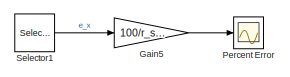
[diagram: root canvas - part 1/3, top right region]
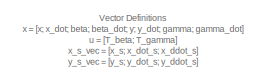
[diagram: root canvas - part 2/3, middle left region]
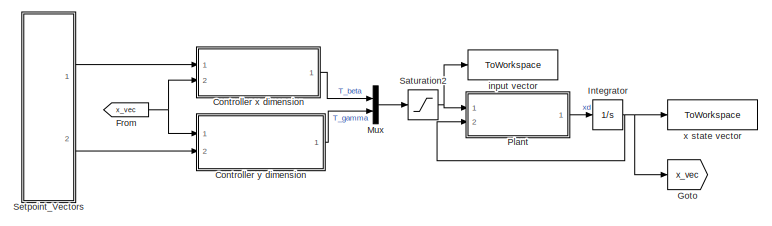
[diagram: root canvas - part 3/3, bottom left region]
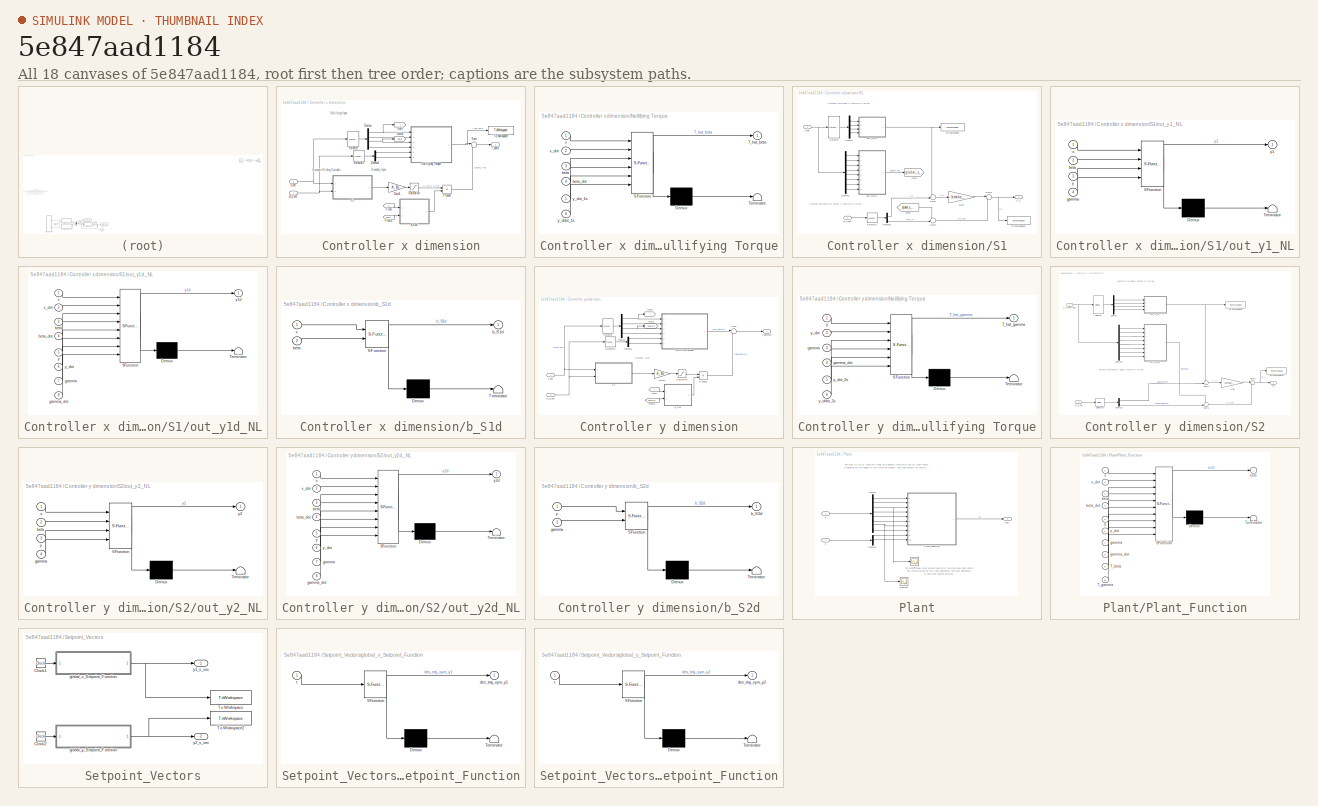
[diagram: thumbnail index - all 18 canvases of the model, root first then tree order]
MODEL slx_5e847aad1184
KIND model
CONFIG AbsTol = auto
CONFIG EnableMultiTasking = off
CONFIG FixedStep = auto
CONFIG MaxStep = auto
CONFIG MinStep = auto
CONFIG RelTol = 1e-9
CONFIG SampleTimeConstraint = Unconstrained
CONFIG SolverName = VariableStepAuto
CONFIG StartTime = 0.0
CONFIG StopTime = t_sim
BLOCK [SubSystem] Controller x dimension
  NameLocation = top
  Ports = [2, 1]
  RequestExecContextInheritance = off
BLOCK [Demux] Controller x dimension/Demux
  Ports = [1, 4]
BLOCK [Demux] Controller x dimension/Demux1
  Outputs = 2
  Ports = [1, 2]
BLOCK [From] Controller x dimension/From
  GotoTag = x
BLOCK [From] Controller x dimension/From1
  GotoTag = beta
BLOCK [Gain] Controller x dimension/Gain1
  Gain = -K_BL
BLOCK [Goto] Controller x dimension/Goto
  GotoTag = x
BLOCK [Goto] Controller x dimension/Goto1
  GotoTag = beta
BLOCK [SubSystem] Controller x dimension/Nullifying Torque
  ErrorFcn = Stateflow.Translate.translate
  PermitHierarchicalResolution = ExplicitOnly
  Ports = [6, 1]
  RequestExecContextInheritance = off
  SFBlockType = MATLAB Function
  TreatAsAtomicUnit = on
BLOCK [Demux] Controller x dimension/Nullifying Torque/ Demux 
  Outputs = 1
  Ports = [1, 1]
BLOCK [S-Function] Controller x dimension/Nullifying Torque/ SFunction 
  EnableBusSupport = on
  FunctionName = sf_sfun
  PortCounts = [6 2]
  Ports = [6, 2]
  SFcnIsStateOwnerBlock = off
  SFunctionDeploymentMode = off
  Tag = Stateflow S-Function 9
BLOCK [Terminator] Controller x dimension/Nullifying Torque/ Terminator 
BLOCK [Outport] Controller x dimension/Nullifying Torque/T_hat_beta
BLOCK [Inport] Controller x dimension/Nullifying Torque/beta
  Port = 3
BLOCK [Inport] Controller x dimension/Nullifying Torque/beta_dot
  Port = 4
BLOCK [Inport] Controller x dimension/Nullifying Torque/x
BLOCK [Inport] Controller x dimension/Nullifying Torque/x_dot
  Port = 2
BLOCK [Inport] Controller x dimension/Nullifying Torque/y_ddot_1s
  Port = 6
BLOCK [Inport] Controller x dimension/Nullifying Torque/y_dot_1s
  Port = 5
BLOCK [Product] Controller x dimension/Product
  Inputs = */
  Ports = [2, 1]
BLOCK [SubSystem] Controller x dimension/S1
  Ports = [2, 1]
  RequestExecContextInheritance = off
BLOCK [Demux] Controller x dimension/S1/Demux
  Ports = [1, 4]
BLOCK [Demux] Controller x dimension/S1/Demux1
  Outputs = 8
  Ports = [1, 8]
BLOCK [Demux] Controller x dimension/S1/Demux2
  Outputs = 2
  Ports = [1, 2]
BLOCK [From] Controller x dimension/S1/From
  GotoTag = global_x_dot
BLOCK [Gain] Controller x dimension/S1/Gain
  Gain = lambda_1_num
BLOCK [Goto] Controller x dimension/S1/Goto
  GotoTag = global_x_dot
BLOCK [Outport] Controller x dimension/S1/S_1
BLOCK [Selector] Controller x dimension/S1/Selector
  IndexOptions = Index vector (dialog)
  Indices = [1 3 5 7]
  InputPortWidth = 8
  OutputSizes = 1
  Ports = [1, 1]
BLOCK [Selector] Controller x dimension/S1/Selector1
  IndexOptions = Index vector (dialog)
  Indices = [1 2]
  InputPortWidth = 3
  OutputSizes = 1
  Ports = [1, 1]
BLOCK [Sum] Controller x dimension/S1/Sum1
  Inputs = -+|
  Ports = [2, 1]
BLOCK [Sum] Controller x dimension/S1/Sum2
  Inputs = -+|
  Ports = [2, 1]
BLOCK [Sum] Controller x dimension/S1/Sum3
  Inputs = |++
  Ports = [2, 1]
BLOCK [ToWorkspace] Controller x dimension/S1/To Workspace
  FixptAsFi = on
  MaxDataPoints = inf
  Ports = [1]
  SampleTime = -1
  VariableName = y1
BLOCK [ToWorkspace] Controller x dimension/S1/To Workspace1
  FixptAsFi = on
  MaxDataPoints = inf
  Ports = [1]
  SampleTime = -1
  VariableName = S1
BLOCK [SubSystem] Controller x dimension/S1/out_y1_NL
  ErrorFcn = Stateflow.Translate.translate
  PermitHierarchicalResolution = ExplicitOnly
  Ports = [4, 1]
  RequestExecContextInheritance = off
  SFBlockType = MATLAB Function
  TreatAsAtomicUnit = on
BLOCK [Demux] Controller x dimension/S1/out_y1_NL/ Demux 
  Outputs = 1
  Ports = [1, 1]
BLOCK [S-Function] Controller x dimension/S1/out_y1_NL/ SFunction 
  EnableBusSupport = on
  FunctionName = sf_sfun
  PortCounts = [4 2]
  Ports = [4, 2]
  SFcnIsStateOwnerBlock = off
  SFunctionDeploymentMode = off
  Tag = Stateflow S-Function 5
BLOCK [Terminator] Controller x dimension/S1/out_y1_NL/ Terminator 
BLOCK [Inport] Controller x dimension/S1/out_y1_NL/beta
  Port = 2
BLOCK [Inport] Controller x dimension/S1/out_y1_NL/gamma
  Port = 4
BLOCK [Inport] Controller x dimension/S1/out_y1_NL/x
BLOCK [Inport] Controller x dimension/S1/out_y1_NL/y
  Port = 3
BLOCK [Outport] Controller x dimension/S1/out_y1_NL/y1
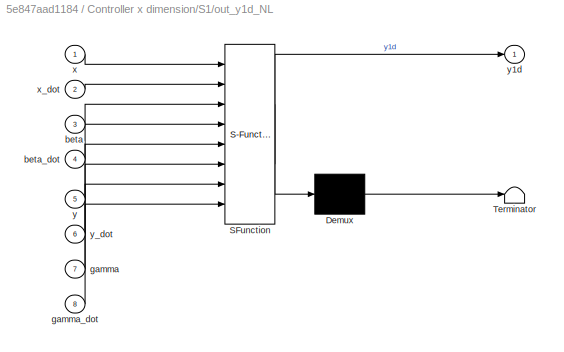
BLOCK [SubSystem] Controller x dimension/S1/out_y1d_NL
  ErrorFcn = Stateflow.Translate.translate
  PermitHierarchicalResolution = ExplicitOnly
  Ports = [8, 1]
  RequestExecContextInheritance = off
  SFBlockType = MATLAB Function
  TreatAsAtomicUnit = on
BLOCK [Demux] Controller x dimension/S1/out_y1d_NL/ Demux 
  Outputs = 1
  Ports = [1, 1]
BLOCK [S-Function] Controller x dimension/S1/out_y1d_NL/ SFunction 
  EnableBusSupport = on
  FunctionName = sf_sfun
  PortCounts = [8 2]
  Ports = [8, 2]
  SFcnIsStateOwnerBlock = off
  SFunctionDeploymentMode = off
  Tag = Stateflow S-Function 11
BLOCK [Terminator] Controller x dimension/S1/out_y1d_NL/ Terminator 
BLOCK [Inport] Controller x dimension/S1/out_y1d_NL/beta
  Port = 3
BLOCK [Inport] Controller x dimension/S1/out_y1d_NL/beta_dot
  Port = 4
BLOCK [Inport] Controller x dimension/S1/out_y1d_NL/gamma
  Port = 7
BLOCK [Inport] Controller x dimension/S1/out_y1d_NL/gamma_dot
  Port = 8
BLOCK [Inport] Controller x dimension/S1/out_y1d_NL/x
BLOCK [Inport] Controller x dimension/S1/out_y1d_NL/x_dot
  Port = 2
BLOCK [Inport] Controller x dimension/S1/out_y1d_NL/y
  Port = 5
BLOCK [Outport] Controller x dimension/S1/out_y1d_NL/y1d
BLOCK [Inport] Controller x dimension/S1/out_y1d_NL/y_dot
  Port = 6
BLOCK [Inport] Controller x dimension/S1/x_vec
BLOCK [Inport] Controller x dimension/S1/y1_s_vec
  Port = 2
BLOCK [Saturate] Controller x dimension/Saturation
  LowerLimit = -K_BL*BL_size
  UpperLimit = K_BL*BL_size
BLOCK [Selector] Controller x dimension/Selector
  IndexOptions = Index vector (dialog)
  Indices = [1:4]
  InputPortWidth = 8
  OutputSizes = 1
  Ports = [1, 1]
BLOCK [Selector] Controller x dimension/Selector1
  IndexOptions = Index vector (dialog)
  Indices = [2 3]
  InputPortWidth = 3
  OutputSizes = 1
  Ports = [1, 1]
BLOCK [Sum] Controller x dimension/Sum
  Inputs = |++
  Ports = [2, 1]
BLOCK [Outport] Controller x dimension/T_beta
BLOCK [ToWorkspace] Controller x dimension/To Workspace
  FixptAsFi = on
  MaxDataPoints = inf
  Ports = [1]
  SampleTime = -1
  VariableName = T_hat_beta
BLOCK [SubSystem] Controller x dimension/b_S1d
  ErrorFcn = Stateflow.Translate.translate
  NameLocation = top
  PermitHierarchicalResolution = ExplicitOnly
  Ports = [2, 1]
  RequestExecContextInheritance = off
  SFBlockType = MATLAB Function
  TreatAsAtomicUnit = on
BLOCK [Demux] Controller x dimension/b_S1d/ Demux 
  Outputs = 1
  Ports = [1, 1]
BLOCK [S-Function] Controller x dimension/b_S1d/ SFunction 
  EnableBusSupport = on
  FunctionName = sf_sfun
  PortCounts = [2 2]
  Ports = [2, 2]
  SFcnIsStateOwnerBlock = off
  SFunctionDeploymentMode = off
  Tag = Stateflow S-Function 6
BLOCK [Terminator] Controller x dimension/b_S1d/ Terminator 
BLOCK [Outport] Controller x dimension/b_S1d/b_S1d
BLOCK [Inport] Controller x dimension/b_S1d/beta
  Port = 2
BLOCK [Inport] Controller x dimension/b_S1d/x
BLOCK [Inport] Controller x dimension/x_vec
  Port = 2
BLOCK [Inport] Controller x dimension/y1_s_vec
BLOCK [SubSystem] Controller y dimension
  Ports = [2, 1]
  RequestExecContextInheritance = off
BLOCK [Demux] Controller y dimension/Demux
  Ports = [1, 4]
BLOCK [Demux] Controller y dimension/Demux1
  Outputs = 2
  Ports = [1, 2]
BLOCK [From] Controller y dimension/From
  GotoTag = y
BLOCK [From] Controller y dimension/From1
  GotoTag = gamma
BLOCK [Gain] Controller y dimension/Gain1
  Gain = -K_BL
BLOCK [Goto] Controller y dimension/Goto
  GotoTag = y
BLOCK [Goto] Controller y dimension/Goto1
  GotoTag = gamma
BLOCK [SubSystem] Controller y dimension/Nullifying Torque
  ErrorFcn = Stateflow.Translate.translate
  PermitHierarchicalResolution = ExplicitOnly
  Ports = [6, 1]
  RequestExecContextInheritance = off
  SFBlockType = MATLAB Function
  TreatAsAtomicUnit = on
BLOCK [Demux] Controller y dimension/Nullifying Torque/ Demux 
  Outputs = 1
  Ports = [1, 1]
BLOCK [S-Function] Controller y dimension/Nullifying Torque/ SFunction 
  EnableBusSupport = on
  FunctionName = sf_sfun
  PortCounts = [6 2]
  Ports = [6, 2]
  SFcnIsStateOwnerBlock = off
  SFunctionDeploymentMode = off
  Tag = Stateflow S-Function 10
BLOCK [Terminator] Controller y dimension/Nullifying Torque/ Terminator 
BLOCK [Outport] Controller y dimension/Nullifying Torque/T_hat_gamma
BLOCK [Inport] Controller y dimension/Nullifying Torque/gamma
  Port = 3
BLOCK [Inport] Controller y dimension/Nullifying Torque/gamma_dot
  Port = 4
BLOCK [Inport] Controller y dimension/Nullifying Torque/y
BLOCK [Inport] Controller y dimension/Nullifying Torque/y_ddot_2s
  Port = 6
BLOCK [Inport] Controller y dimension/Nullifying Torque/y_dot
  Port = 2
BLOCK [Inport] Controller y dimension/Nullifying Torque/y_dot_2s
  Port = 5
BLOCK [Product] Controller y dimension/Product
  Inputs = */
  Ports = [2, 1]
BLOCK [SubSystem] Controller y dimension/S2
  Ports = [2, 1]
  RequestExecContextInheritance = off
BLOCK [Demux] Controller y dimension/S2/Demux
  Ports = [1, 4]
BLOCK [Demux] Controller y dimension/S2/Demux1
  Outputs = 8
  Ports = [1, 8]
BLOCK [Demux] Controller y dimension/S2/Demux2
  Outputs = 2
  Ports = [1, 2]
BLOCK [Gain] Controller y dimension/S2/Gain
  Gain = lambda_2_num
BLOCK [Outport] Controller y dimension/S2/S_2
BLOCK [Selector] Controller y dimension/S2/Selector
  IndexOptions = Index vector (dialog)
  Indices = [1 3 5 7]
  InputPortWidth = 8
  OutputSizes = 1
  Ports = [1, 1]
BLOCK [Selector] Controller y dimension/S2/Selector1
  IndexOptions = Index vector (dialog)
  Indices = [1 2]
  InputPortWidth = 3
  OutputSizes = 1
  Ports = [1, 1]
BLOCK [Sum] Controller y dimension/S2/Sum1
  Inputs = -+|
  Ports = [2, 1]
BLOCK [Sum] Controller y dimension/S2/Sum2
  Inputs = -+|
  Ports = [2, 1]
BLOCK [Sum] Controller y dimension/S2/Sum3
  Inputs = |++
  Ports = [2, 1]
BLOCK [ToWorkspace] Controller y dimension/S2/To Workspace
  FixptAsFi = on
  MaxDataPoints = inf
  Ports = [1]
  SampleTime = -1
  VariableName = y2
BLOCK [ToWorkspace] Controller y dimension/S2/To Workspace1
  FixptAsFi = on
  MaxDataPoints = inf
  Ports = [1]
  SampleTime = -1
  VariableName = S2
BLOCK [SubSystem] Controller y dimension/S2/out_y2_NL
  ErrorFcn = Stateflow.Translate.translate
  PermitHierarchicalResolution = ExplicitOnly
  Ports = [4, 1]
  RequestExecContextInheritance = off
  SFBlockType = MATLAB Function
  TreatAsAtomicUnit = on
BLOCK [Demux] Controller y dimension/S2/out_y2_NL/ Demux 
  Outputs = 1
  Ports = [1, 1]
BLOCK [S-Function] Controller y dimension/S2/out_y2_NL/ SFunction 
  EnableBusSupport = on
  FunctionName = sf_sfun
  PortCounts = [4 2]
  Ports = [4, 2]
  SFcnIsStateOwnerBlock = off
  SFunctionDeploymentMode = off
  Tag = Stateflow S-Function 4
BLOCK [Terminator] Controller y dimension/S2/out_y2_NL/ Terminator 
BLOCK [Inport] Controller y dimension/S2/out_y2_NL/beta
  Port = 2
BLOCK [Inport] Controller y dimension/S2/out_y2_NL/gamma
  Port = 4
BLOCK [Inport] Controller y dimension/S2/out_y2_NL/x
BLOCK [Inport] Controller y dimension/S2/out_y2_NL/y
  Port = 3
BLOCK [Outport] Controller y dimension/S2/out_y2_NL/y2
BLOCK [SubSystem] Controller y dimension/S2/out_y2d_NL
  ErrorFcn = Stateflow.Translate.translate
  PermitHierarchicalResolution = ExplicitOnly
  Ports = [8, 1]
  RequestExecContextInheritance = off
  SFBlockType = MATLAB Function
  TreatAsAtomicUnit = on
BLOCK [Demux] Controller y dimension/S2/out_y2d_NL/ Demux 
  Outputs = 1
  Ports = [1, 1]
BLOCK [S-Function] Controller y dimension/S2/out_y2d_NL/ SFunction 
  EnableBusSupport = on
  FunctionName = sf_sfun
  PortCounts = [8 2]
  Ports = [8, 2]
  SFcnIsStateOwnerBlock = off
  SFunctionDeploymentMode = off
  Tag = Stateflow S-Function 8
BLOCK [Terminator] Controller y dimension/S2/out_y2d_NL/ Terminator 
BLOCK [Inport] Controller y dimension/S2/out_y2d_NL/beta
  Port = 3
BLOCK [Inport] Controller y dimension/S2/out_y2d_NL/beta_dot
  Port = 4
BLOCK [Inport] Controller y dimension/S2/out_y2d_NL/gamma
  Port = 7
BLOCK [Inport] Controller y dimension/S2/out_y2d_NL/gamma_dot
  Port = 8
BLOCK [Inport] Controller y dimension/S2/out_y2d_NL/x
BLOCK [Inport] Controller y dimension/S2/out_y2d_NL/x_dot
  Port = 2
BLOCK [Inport] Controller y dimension/S2/out_y2d_NL/y
  Port = 5
BLOCK [Outport] Controller y dimension/S2/out_y2d_NL/y2d
BLOCK [Inport] Controller y dimension/S2/out_y2d_NL/y_dot
  Port = 6
BLOCK [Inport] Controller y dimension/S2/x (state vec)
BLOCK [Inport] Controller y dimension/S2/y2_s_vec
  Port = 2
BLOCK [Saturate] Controller y dimension/Saturation
  LowerLimit = -K_BL*BL_size
  UpperLimit = K_BL*BL_size
BLOCK [Selector] Controller y dimension/Selector
  IndexOptions = Index vector (dialog)
  Indices = [5:8]
  InputPortWidth = 8
  OutputSizes = 1
  Ports = [1, 1]
BLOCK [Selector] Controller y dimension/Selector1
  IndexOptions = Index vector (dialog)
  Indices = [2 3]
  InputPortWidth = 3
  OutputSizes = 1
  Ports = [1, 1]
BLOCK [Sum] Controller y dimension/Sum
  Inputs = |++
  Ports = [2, 1]
BLOCK [Outport] Controller y dimension/T_gamma
BLOCK [SubSystem] Controller y dimension/b_S2d
  ErrorFcn = Stateflow.Translate.translate
  NameLocation = top
  PermitHierarchicalResolution = ExplicitOnly
  Ports = [2, 1]
  RequestExecContextInheritance = off
  SFBlockType = MATLAB Function
  TreatAsAtomicUnit = on
BLOCK [Demux] Controller y dimension/b_S2d/ Demux 
  Outputs = 1
  Ports = [1, 1]
BLOCK [S-Function] Controller y dimension/b_S2d/ SFunction 
  EnableBusSupport = on
  FunctionName = sf_sfun
  PortCounts = [2 2]
  Ports = [2, 2]
  SFcnIsStateOwnerBlock = off
  SFunctionDeploymentMode = off
  Tag = Stateflow S-Function 7
BLOCK [Terminator] Controller y dimension/b_S2d/ Terminator 
BLOCK [Outport] Controller y dimension/b_S2d/b_S2d
BLOCK [Inport] Controller y dimension/b_S2d/gamma
  Port = 2
BLOCK [Inport] Controller y dimension/b_S2d/y
BLOCK [Inport] Controller y dimension/x_vec
BLOCK [Inport] Controller y dimension/y2_s_vec
  Port = 2
BLOCK [From] From
  GotoTag = x_vec
BLOCK [Gain] Gain5
  Commented = on
  Gain = 100/r_sim
BLOCK [Goto] Goto
  GotoTag = x_vec
BLOCK [Integrator] Integrator
  InitialCondition = x_0
  Ports = [1, 1]
BLOCK [Mux] Mux
  DisplayOption = bar
  Inputs = 2
  Ports = [2, 1]
BLOCK [Scope] Percent Error
  Commented = on
  Floating = off
  NumInputPorts = 1
  Ports = [1]
  ScopeSpecificationString = Simulink.scopes.TimeScopeBlockCfg('CurrentConfiguration', extmgr.ConfigurationSet(extmgr.Configuration('Core','General UI',true),extmgr.Configuration('Core','Source UI',true),extmgr.Configuration('Sources','WiredSimulink',true,'DataLoggingVariableName','ScopeData2'),extmgr.Configuration('Visuals','Time Domain',true,'SerializedDisplays',{struct('MinYLimReal','-1.29449','MaxYLimReal','1.86814','YLab...<+1556ch>
BLOCK [SubSystem] Plant
  Ports = [2, 1]
  RequestExecContextInheritance = off
BLOCK [Scope] Plant/Beta
  Floating = off
  NumInputPorts = 1
  Ports = [1]
  ScopeSpecificationString = Simulink.scopes.TimeScopeBlockCfg('CurrentConfiguration', extmgr.ConfigurationSet(extmgr.Configuration('Core','General UI',true),extmgr.Configuration('Core','Source UI',true),extmgr.Configuration('Sources','WiredSimulink',true,'DataLoggingVariableName','ScopeData2'),extmgr.Configuration('Visuals','Time Domain',true,'SerializedDisplays',{struct('MinYLimReal','-0.09593','MaxYLimReal','0.09557','YLab...<+1391ch>
BLOCK [Demux] Plant/Demux
  Outputs = 8
  Ports = [1, 8]
BLOCK [Demux] Plant/Demux1
  Outputs = 2
  Ports = [1, 2]
BLOCK [Scope] Plant/Gamma
  Floating = off
  NumInputPorts = 1
  Ports = [1]
  ScopeSpecificationString = Simulink.scopes.TimeScopeBlockCfg('CurrentConfiguration', extmgr.ConfigurationSet(extmgr.Configuration('Core','General UI',true),extmgr.Configuration('Core','Source UI',true),extmgr.Configuration('Sources','WiredSimulink',true,'DataLoggingVariableName','ScopeData1'),extmgr.Configuration('Visuals','Time Domain',true),extmgr.Configuration('Tools','Plot Navigation',true),extmgr.Configuration('Tools',...<+40ch>
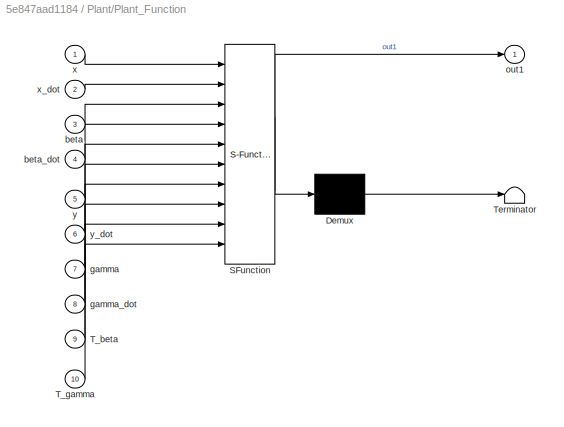
BLOCK [SubSystem] Plant/Plant_Function
  ErrorFcn = Stateflow.Translate.translate
  PermitHierarchicalResolution = ExplicitOnly
  Ports = [10, 1]
  RequestExecContextInheritance = off
  SFBlockType = MATLAB Function
  TreatAsAtomicUnit = on
BLOCK [Demux] Plant/Plant_Function/ Demux 
  Outputs = 1
  Ports = [1, 1]
BLOCK [S-Function] Plant/Plant_Function/ SFunction 
  EnableBusSupport = on
  FunctionName = sf_sfun
  PortCounts = [10 2]
  Ports = [10, 2]
  SFcnIsStateOwnerBlock = off
  SFunctionDeploymentMode = off
  Tag = Stateflow S-Function 1
BLOCK [Terminator] Plant/Plant_Function/ Terminator 
BLOCK [Inport] Plant/Plant_Function/T_beta
  Port = 9
BLOCK [Inport] Plant/Plant_Function/T_gamma
  Port = 10
BLOCK [Inport] Plant/Plant_Function/beta
  Port = 3
BLOCK [Inport] Plant/Plant_Function/beta_dot
  Port = 4
BLOCK [Inport] Plant/Plant_Function/gamma
  Port = 7
BLOCK [Inport] Plant/Plant_Function/gamma_dot
  Port = 8
BLOCK [Outport] Plant/Plant_Function/out1
BLOCK [Inport] Plant/Plant_Function/x
BLOCK [Inport] Plant/Plant_Function/x_dot
  Port = 2
BLOCK [Inport] Plant/Plant_Function/y
  Port = 5
BLOCK [Inport] Plant/Plant_Function/y_dot
  Port = 6
BLOCK [Outport] Plant/out1
BLOCK [Inport] Plant/u
BLOCK [Inport] Plant/x
  Port = 2
BLOCK [Saturate] Saturation2
  LowerLimit = -Tmax
  UpperLimit = Tmax
  ZeroCross = off
BLOCK [Selector] Selector1
  Commented = on
  IndexOptions = Index vector (dialog)
  Indices = [1]
  InputPortWidth = 5
  OutputSizes = 1
  Ports = [1, 1]
BLOCK [SubSystem] Setpoint_Vectors
  Ports = [0, 2]
  RequestExecContextInheritance = off
BLOCK [Clock] Setpoint_Vectors/Clock1
BLOCK [Clock] Setpoint_Vectors/Clock2
BLOCK [ToWorkspace] Setpoint_Vectors/To Workspace
  FixptAsFi = on
  MaxDataPoints = inf
  Ports = [1]
  SampleTime = -1
  VariableName = y1_s_vec
BLOCK [ToWorkspace] Setpoint_Vectors/To Workspace2
  FixptAsFi = on
  MaxDataPoints = inf
  Ports = [1]
  SampleTime = -1
  VariableName = y2_s_vec
BLOCK [SubSystem] Setpoint_Vectors/global_x_Setpoint_Function
  ErrorFcn = Stateflow.Translate.translate
  PermitHierarchicalResolution = ExplicitOnly
  Ports = [1, 1]
  RequestExecContextInheritance = off
  SFBlockType = MATLAB Function
  TreatAsAtomicUnit = on
BLOCK [Demux] Setpoint_Vectors/global_x_Setpoint_Function/ Demux 
  Outputs = 1
  Ports = [1, 1]
BLOCK [S-Function] Setpoint_Vectors/global_x_Setpoint_Function/ SFunction 
  EnableBusSupport = on
  FunctionName = sf_sfun
  PortCounts = [1 2]
  Ports = [1, 2]
  SFcnIsStateOwnerBlock = off
  SFunctionDeploymentMode = off
  Tag = Stateflow S-Function 2
BLOCK [Terminator] Setpoint_Vectors/global_x_Setpoint_Function/ Terminator 
BLOCK [Outport] Setpoint_Vectors/global_x_Setpoint_Function/des_traj_sym_y1
BLOCK [Inport] Setpoint_Vectors/global_x_Setpoint_Function/t
BLOCK [SubSystem] Setpoint_Vectors/global_y_Setpoint_Function
  ErrorFcn = Stateflow.Translate.translate
  PermitHierarchicalResolution = ExplicitOnly
  Ports = [1, 1]
  RequestExecContextInheritance = off
  SFBlockType = MATLAB Function
  TreatAsAtomicUnit = on
BLOCK [Demux] Setpoint_Vectors/global_y_Setpoint_Function/ Demux 
  Outputs = 1
  Ports = [1, 1]
BLOCK [S-Function] Setpoint_Vectors/global_y_Setpoint_Function/ SFunction 
  EnableBusSupport = on
  FunctionName = sf_sfun
  PortCounts = [1 2]
  Ports = [1, 2]
  SFcnIsStateOwnerBlock = off
  SFunctionDeploymentMode = off
  Tag = Stateflow S-Function 3
BLOCK [Terminator] Setpoint_Vectors/global_y_Setpoint_Function/ Terminator 
BLOCK [Outport] Setpoint_Vectors/global_y_Setpoint_Function/des_traj_sym_y2
BLOCK [Inport] Setpoint_Vectors/global_y_Setpoint_Function/t
BLOCK [Outport] Setpoint_Vectors/y1_s_vec
BLOCK [Outport] Setpoint_Vectors/y2_s_vec
  Port = 2
BLOCK [ToWorkspace] input vector
  FixptAsFi = on
  MaxDataPoints = inf
  Ports = [1]
  SampleTime = -1
  VariableName = u
BLOCK [ToWorkspace] x state vector
  FixptAsFi = on
  MaxDataPoints = inf
  Ports = [1]
  SampleTime = -1
  VariableName = x
ANNOTATION (root): Vector Definitions x = [x; x_dot; beta; beta_dot; y; y_dot; gamma; gamma_dot] u = [T_beta; T_gamma] x_s_vec = [x_s; x_dot_s; x_ddot_s] y_s_vec = [y_s; y_dot_s; y_ddot_s]
ANNOTATION Controller x dimension: Boundary Layer
ANNOTATION Controller x dimension: Compute Sliding Variable
ANNOTATION Controller x dimension: Nullifying Input
ANNOTATION Controller x dimension/S1: Compute derivative of global x location of the ball
ANNOTATION Controller x dimension/S1: Compute the global x location of the ball
ANNOTATION Controller y dimension: Boundary Layer
ANNOTATION Controller y dimension/S2: Compute derivative of global y location of the ball
ANNOTATION Controller y dimension/S2: Compute the global y location of the ball
ANNOTATION Plant: The plant MATLAB function is kept as a general function of the full state vector to generalize this aspect of the Simulink models. The class objects for controllers must define this function in terms of all possible inputs. It is ok for certain inputs to be unused.
ANNOTATION Plant: The plant model must be and function of the state and input vector but otherwise can be the linear decoupled, nonlinear decoupled, or nonlinear coupled versions
LINE Controller x dimension/Demux1:1 -> Controller x dimension/Nullifying Torque:5
LINE Controller x dimension/Demux1:2 -> Controller x dimension/Nullifying Torque:6
NET Controller x dimension/Demux:1 -> Controller x dimension/Goto:1, Controller x dimension/Nullifying Torque:1
LINE Controller x dimension/Demux:2 -> Controller x dimension/Nullifying Torque:2
NET Controller x dimension/Demux:3 -> Controller x dimension/Goto1:1, Controller x dimension/Nullifying Torque:3
LINE Controller x dimension/Demux:4 -> Controller x dimension/Nullifying Torque:4
LINE Controller x dimension/From1:1 -> Controller x dimension/b_S1d:2
LINE Controller x dimension/From:1 -> Controller x dimension/b_S1d:1
LINE Controller x dimension/Gain1:1 -> Controller x dimension/Saturation:1
NET Controller x dimension/Nullifying Torque:1 -> Controller x dimension/Sum:1, Controller x dimension/To Workspace:1
LINE Controller x dimension/Product:1 -> Controller x dimension/Sum:2
LINE Controller x dimension/S1/Demux1:1 -> Controller x dimension/S1/out_y1d_NL:1
LINE Controller x dimension/S1/Demux1:2 -> Controller x dimension/S1/out_y1d_NL:2
LINE Controller x dimension/S1/Demux1:3 -> Controller x dimension/S1/out_y1d_NL:3
LINE Controller x dimension/S1/Demux1:4 -> Controller x dimension/S1/out_y1d_NL:4
LINE Controller x dimension/S1/Demux1:5 -> Controller x dimension/S1/out_y1d_NL:5
LINE Controller x dimension/S1/Demux1:6 -> Controller x dimension/S1/out_y1d_NL:6
LINE Controller x dimension/S1/Demux1:7 -> Controller x dimension/S1/out_y1d_NL:7
LINE Controller x dimension/S1/Demux1:8 -> Controller x dimension/S1/out_y1d_NL:8
LINE Controller x dimension/S1/Demux2:1 -> Controller x dimension/S1/Sum1:2
LINE Controller x dimension/S1/Demux2:2 -> Controller x dimension/S1/Sum2:2
LINE Controller x dimension/S1/Demux:1 -> Controller x dimension/S1/out_y1_NL:1
LINE Controller x dimension/S1/Demux:2 -> Controller x dimension/S1/out_y1_NL:2
LINE Controller x dimension/S1/Demux:3 -> Controller x dimension/S1/out_y1_NL:3
LINE Controller x dimension/S1/Demux:4 -> Controller x dimension/S1/out_y1_NL:4
LINE Controller x dimension/S1/From:1 -> Controller x dimension/S1/Sum2:1
LINE Controller x dimension/S1/Gain:1 -> Controller x dimension/S1/Sum3:1
LINE Controller x dimension/S1/Selector1:1 -> Controller x dimension/S1/Demux2:1
LINE Controller x dimension/S1/Selector:1 -> Controller x dimension/S1/Demux:1
LINE Controller x dimension/S1/Sum1:1 -> Controller x dimension/S1/Gain:1
LINE Controller x dimension/S1/Sum2:1 -> Controller x dimension/S1/Sum3:2
NET Controller x dimension/S1/Sum3:1 -> Controller x dimension/S1/S_1:1, Controller x dimension/S1/To Workspace1:1
NET Controller x dimension/S1/out_y1_NL:1 -> Controller x dimension/S1/Sum1:1, Controller x dimension/S1/To Workspace:1
LINE Controller x dimension/S1/out_y1d_NL:1 -> Controller x dimension/S1/Goto:1
NET Controller x dimension/S1/x_vec:1 -> Controller x dimension/S1/Demux1:1, Controller x dimension/S1/Selector:1
LINE Controller x dimension/S1/y1_s_vec:1 -> Controller x dimension/S1/Selector1:1
LINE Controller x dimension/S1:1 -> Controller x dimension/Gain1:1
LINE Controller x dimension/Saturation:1 -> Controller x dimension/Product:1
LINE Controller x dimension/Selector1:1 -> Controller x dimension/Demux1:1
LINE Controller x dimension/Selector:1 -> Controller x dimension/Demux:1
LINE Controller x dimension/Sum:1 -> Controller x dimension/T_beta:1
LINE Controller x dimension/b_S1d:1 -> Controller x dimension/Product:2
NET Controller x dimension/x_vec:1 -> Controller x dimension/S1:1, Controller x dimension/Selector:1
NET Controller x dimension/y1_s_vec:1 -> Controller x dimension/S1:2, Controller x dimension/Selector1:1
LINE Controller x dimension:1 -> Mux:1
LINE Controller y dimension/Demux1:1 -> Controller y dimension/Nullifying Torque:5
LINE Controller y dimension/Demux1:2 -> Controller y dimension/Nullifying Torque:6
NET Controller y dimension/Demux:1 -> Controller y dimension/Goto:1, Controller y dimension/Nullifying Torque:1
LINE Controller y dimension/Demux:2 -> Controller y dimension/Nullifying Torque:2
NET Controller y dimension/Demux:3 -> Controller y dimension/Goto1:1, Controller y dimension/Nullifying Torque:3
LINE Controller y dimension/Demux:4 -> Controller y dimension/Nullifying Torque:4
LINE Controller y dimension/From1:1 -> Controller y dimension/b_S2d:2
LINE Controller y dimension/From:1 -> Controller y dimension/b_S2d:1
LINE Controller y dimension/Gain1:1 -> Controller y dimension/Saturation:1
LINE Controller y dimension/Nullifying Torque:1 -> Controller y dimension/Sum:1
LINE Controller y dimension/Product:1 -> Controller y dimension/Sum:2
LINE Controller y dimension/S2/Demux1:1 -> Controller y dimension/S2/out_y2d_NL:1
LINE Controller y dimension/S2/Demux1:2 -> Controller y dimension/S2/out_y2d_NL:2
LINE Controller y dimension/S2/Demux1:3 -> Controller y dimension/S2/out_y2d_NL:3
LINE Controller y dimension/S2/Demux1:4 -> Controller y dimension/S2/out_y2d_NL:4
LINE Controller y dimension/S2/Demux1:5 -> Controller y dimension/S2/out_y2d_NL:5
LINE Controller y dimension/S2/Demux1:6 -> Controller y dimension/S2/out_y2d_NL:6
LINE Controller y dimension/S2/Demux1:7 -> Controller y dimension/S2/out_y2d_NL:7
LINE Controller y dimension/S2/Demux1:8 -> Controller y dimension/S2/out_y2d_NL:8
LINE Controller y dimension/S2/Demux2:1 -> Controller y dimension/S2/Sum1:2
LINE Controller y dimension/S2/Demux2:2 -> Controller y dimension/S2/Sum2:2
LINE Controller y dimension/S2/Demux:1 -> Controller y dimension/S2/out_y2_NL:1
LINE Controller y dimension/S2/Demux:2 -> Controller y dimension/S2/out_y2_NL:2
LINE Controller y dimension/S2/Demux:3 -> Controller y dimension/S2/out_y2_NL:3
LINE Controller y dimension/S2/Demux:4 -> Controller y dimension/S2/out_y2_NL:4
LINE Controller y dimension/S2/Gain:1 -> Controller y dimension/S2/Sum3:1
LINE Controller y dimension/S2/Selector1:1 -> Controller y dimension/S2/Demux2:1
LINE Controller y dimension/S2/Selector:1 -> Controller y dimension/S2/Demux:1
LINE Controller y dimension/S2/Sum1:1 -> Controller y dimension/S2/Gain:1
LINE Controller y dimension/S2/Sum2:1 -> Controller y dimension/S2/Sum3:2
NET Controller y dimension/S2/Sum3:1 -> Controller y dimension/S2/S_2:1, Controller y dimension/S2/To Workspace1:1
NET Controller y dimension/S2/out_y2_NL:1 -> Controller y dimension/S2/Sum1:1, Controller y dimension/S2/To Workspace:1
LINE Controller y dimension/S2/out_y2d_NL:1 -> Controller y dimension/S2/Sum2:1
NET Controller y dimension/S2/x (state vec):1 -> Controller y dimension/S2/Demux1:1, Controller y dimension/S2/Selector:1
LINE Controller y dimension/S2/y2_s_vec:1 -> Controller y dimension/S2/Selector1:1
LINE Controller y dimension/S2:1 -> Controller y dimension/Gain1:1
LINE Controller y dimension/Saturation:1 -> Controller y dimension/Product:1
LINE Controller y dimension/Selector1:1 -> Controller y dimension/Demux1:1
LINE Controller y dimension/Selector:1 -> Controller y dimension/Demux:1
LINE Controller y dimension/Sum:1 -> Controller y dimension/T_gamma:1
LINE Controller y dimension/b_S2d:1 -> Controller y dimension/Product:2
NET Controller y dimension/x_vec:1 -> Controller y dimension/S2:1, Controller y dimension/Selector:1
NET Controller y dimension/y2_s_vec:1 -> Controller y dimension/S2:2, Controller y dimension/Selector1:1
LINE Controller y dimension:1 -> Mux:2
NET From:1 -> Controller x dimension:2, Controller y dimension:1
LINE Gain5:1 -> Percent Error:1
NET Integrator:1 -> Goto:1, Plant:2, x state vector:1
LINE Mux:1 -> Saturation2:1
LINE Plant/Demux1:1 -> Plant/Plant_Function:9
LINE Plant/Demux1:2 -> Plant/Plant_Function:10
LINE Plant/Demux:1 -> Plant/Plant_Function:1
LINE Plant/Demux:2 -> Plant/Plant_Function:2
NET Plant/Demux:3 -> Plant/Beta:1, Plant/Plant_Function:3
LINE Plant/Demux:4 -> Plant/Plant_Function:4
LINE Plant/Demux:5 -> Plant/Plant_Function:5
LINE Plant/Demux:6 -> Plant/Plant_Function:6
NET Plant/Demux:7 -> Plant/Gamma:1, Plant/Plant_Function:7
LINE Plant/Demux:8 -> Plant/Plant_Function:8
LINE Plant/Plant_Function:1 -> Plant/out1:1
LINE Plant/u:1 -> Plant/Demux1:1
LINE Plant/x:1 -> Plant/Demux:1
LINE Plant:1 -> Integrator:1
NET Saturation2:1 -> Plant:1, input vector:1
LINE Selector1:1 -> Gain5:1
LINE Setpoint_Vectors/Clock1:1 -> Setpoint_Vectors/global_x_Setpoint_Function:1
LINE Setpoint_Vectors/Clock2:1 -> Setpoint_Vectors/global_y_Setpoint_Function:1
NET Setpoint_Vectors/global_x_Setpoint_Function:1 -> Setpoint_Vectors/To Workspace:1, Setpoint_Vectors/y1_s_vec:1
NET Setpoint_Vectors/global_y_Setpoint_Function:1 -> Setpoint_Vectors/To Workspace2:1, Setpoint_Vectors/y2_s_vec:1
LINE Setpoint_Vectors:1 -> Controller x dimension:1
LINE Setpoint_Vectors:2 -> Controller y dimension:2
note: NET lines group one-source signal fan-out (src -> all destinations, sorted); 1:1 wires keep LINE
CHART Controller y dimension/Nullifying Torque states=1 transitions=1
  STATE_LABEL 'eML_blk_kernel()'
  STATE_LABEL 'SCRIPT:\nfunction T_hat_gamma = T_hat_gamma(y,y_dot,gamma,gamma_dot,y_dot_2s,y_ddot_2s)\n%#codegen\n\n%    This function was generated by the Symbolic Math Toolbox version 9.1.\n%    19-Mar-2023 19:56:16\n\nt2 = cos(gamma);\nt3 = sin(gamma);\nt4 = gamma_dot.^2;\nt5 = y.^2;\nt6 = t5.*(6.3e+1./4.0e+1);\nt7 = t6+7.625400325243e-1;\nt8 = 1.0./t7;\net1 = y_dot_2s.*(1.2e+1./5.0)+y_ddot_2s+gamma_dot.*t2.*(1.83e+2./6.2...<+489ch>'
CHART Controller x dimension/S1/out_y1d_NL states=1 transitions=1
  STATE_LABEL 'eML_blk_kernel()'
  STATE_LABEL 'SCRIPT:\nfunction y1d = y1d(x,x_dot,beta,beta_dot,y,y_dot,gamma,gamma_dot)\n%#codegen\n\n%    This function was generated by the Symbolic Math Toolbox version 9.1.\n%    19-Mar-2023 19:56:15\n\nt2 = cos(gamma);\nt3 = sin(beta);\nt4 = sin(gamma);\ny1d = cos(beta).*(x_dot+beta_dot.*t2.*(6.1e+1./5.0e+2)+beta_dot.*t4.*y)+t2.*t3.*(gamma_dot.*y-beta_dot.*t2.*x)-t3.*t4.*(gamma_dot.*(6.1e+1./5.0e+2)-y_dot+beta_dot....<+9ch>'
CHART Plant/Plant_Function states=1 transitions=1
  STATE_LABEL 'eML_blk_kernel()'
  STATE_LABEL 'SCRIPT:\nfunction out1 = xdot(x,x_dot,beta,beta_dot,y,y_dot,gamma,gamma_dot,T_beta,T_gamma)\n%#codegen\n\n%    This function was generated by the Symbolic Math Toolbox version 9.1.\n%    19-Mar-2023 19:56:17\n\nt2 = cos(beta);\nt3 = cos(gamma);\nt4 = sin(beta);\nt5 = sin(gamma);\nt6 = beta_dot.^2;\nt7 = gamma_dot.^2;\nt8 = x.^2;\nt9 = x.^3;\nt10 = y.^2;\nt11 = y.^3;\nt13 = y.^5;\nt12 = t10.^2;\nt14 = t3.^2;\nt15 = t3...<+3608ch>'
CHART Setpoint_Vectors/global_x_Setpoint_Function states=1 transitions=1
  STATE_LABEL 'eML_blk_kernel()'
  STATE_LABEL 'SCRIPT:\nfunction des_traj_sym_y1 = y1_s_vec(t)\n%#codegen\n\n%    This function was generated by the Symbolic Math Toolbox version 9.1.\n%    19-Mar-2023 19:56:16\n\nt2 = t.*2.0;\nt3 = -t2;\nt4 = exp(t3);\ndes_traj_sym_y1 = [t4.*(3.0./4.0e+1);t4.*(-3.0./2.0e+1);t4.*(3.0./1.0e+1)];\n'
CHART Setpoint_Vectors/global_y_Setpoint_Function states=1 transitions=1
  STATE_LABEL 'eML_blk_kernel()'
  STATE_LABEL 'SCRIPT:\nfunction des_traj_sym_y2 = y2_s_vec(t)\n%#codegen\n\n%    This function was generated by the Symbolic Math Toolbox version 9.1.\n%    19-Mar-2023 19:56:16\n\nt2 = t.*2.0;\nt3 = -t2;\nt4 = exp(t3);\ndes_traj_sym_y2 = [t4.*(3.0./4.0e+1);t4.*(-3.0./2.0e+1);t4.*(3.0./1.0e+1)];\n'
CHART Controller y dimension/S2/out_y2_NL states=1 transitions=1
  STATE_LABEL 'eML_blk_kernel()'
  STATE_LABEL 'SCRIPT:\nfunction y2 = y2(x,beta,y,gamma)\n%#codegen\n\n%    This function was generated by the Symbolic Math Toolbox version 9.1.\n%    19-Mar-2023 19:56:16\n\ny2 = sin(gamma).*(-6.1e+1./5.0e+2)+y.*cos(gamma);\n'
CHART Controller x dimension/S1/out_y1_NL states=1 transitions=1
  STATE_LABEL 'eML_blk_kernel()'
  STATE_LABEL 'SCRIPT:\nfunction y1 = y1(x,beta,y,gamma)\n%#codegen\n\n%    This function was generated by the Symbolic Math Toolbox version 9.1.\n%    19-Mar-2023 19:56:15\n\nt2 = sin(beta);\ny1 = x.*cos(beta)+t2.*cos(gamma).*(6.1e+1./5.0e+2)+t2.*y.*sin(gamma);\n'
CHART Controller x dimension/b_S1d states=1 transitions=1
  STATE_LABEL 'eML_blk_kernel()'
  STATE_LABEL 'SCRIPT:\nfunction b_S1d = input_gain_S1d(x,beta)\n%#codegen\n\n%    This function was generated by the Symbolic Math Toolbox version 9.1.\n%    19-Mar-2023 19:56:16\n\nt2 = x.^2;\nt3 = t2.*(6.3e+1./4.0e+1);\nt4 = t3+7.625400325243e-1;\nt5 = 1.0./t4;\nb_S1d = [t5.*cos(beta).*(-4.1e+1./2.0e+2)+t5.*x.*sin(beta).*7.0];\n'
CHART Controller y dimension/b_S2d states=1 transitions=1
  STATE_LABEL 'eML_blk_kernel()'
  STATE_LABEL 'SCRIPT:\nfunction b_S2d = input_gain_S2d(y,gamma)\n%#codegen\n\n%    This function was generated by the Symbolic Math Toolbox version 9.1.\n%    19-Mar-2023 19:56:16\n\nt2 = y.^2;\nt3 = t2.*(6.3e+1./4.0e+1);\nt4 = t3+7.625400325243e-1;\nt5 = 1.0./t4;\nb_S2d = [t5.*cos(gamma).*(4.1e+1./2.0e+2)+t5.*y.*sin(gamma).*7.0];\n'
CHART Controller y dimension/S2/out_y2d_NL states=1 transitions=1
  STATE_LABEL 'eML_blk_kernel()'
  STATE_LABEL 'SCRIPT:\nfunction y2d = y2d(x,x_dot,beta,beta_dot,y,y_dot,gamma,gamma_dot)\n%#codegen\n\n%    This function was generated by the Symbolic Math Toolbox version 9.1.\n%    19-Mar-2023 19:56:16\n\nt2 = cos(gamma);\nt3 = sin(gamma);\ny2d = -t3.*(gamma_dot.*y-beta_dot.*t2.*x)-t2.*(gamma_dot.*(6.1e+1./5.0e+2)-y_dot+beta_dot.*t3.*x);\n'
CHART Controller x dimension/Nullifying Torque states=1 transitions=1
  STATE_LABEL 'eML_blk_kernel()'
  STATE_LABEL 'SCRIPT:\nfunction T_hat_beta = T_hat_beta(x,x_dot,beta,beta_dot,y_dot_1s,y_ddot_1s)\n%#codegen\n\n%    This function was generated by the Symbolic Math Toolbox version 9.1.\n%    19-Mar-2023 19:56:15\n\nt2 = cos(beta);\nt3 = sin(beta);\nt4 = beta_dot.^2;\nt5 = x.^2;\nt6 = t5.*(6.3e+1./4.0e+1);\nt7 = t6+7.625400325243e-1;\nt8 = 1.0./t7;\net1 = y_dot_1s.*(1.2e+1./5.0)+y_ddot_1s-beta_dot.*t2.*(1.83e+2./6.25e+2)+t3...<+475ch>'
CHART  states=0 transitions=0
CHART  states=0 transitions=0
CHART  states=0 transitions=0
CHART  states=0 transitions=0
CHART  states=0 transitions=0
CHART  states=0 transitions=0
CHART  states=0 transitions=0
CHART  states=0 transitions=0
CHART  states=0 transitions=0
CHART  states=0 transitions=0
CHART  states=0 transitions=0
